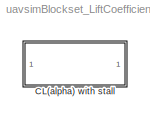
MODEL uavsimBlockset_LiftCoefficientWithStall
KIND library
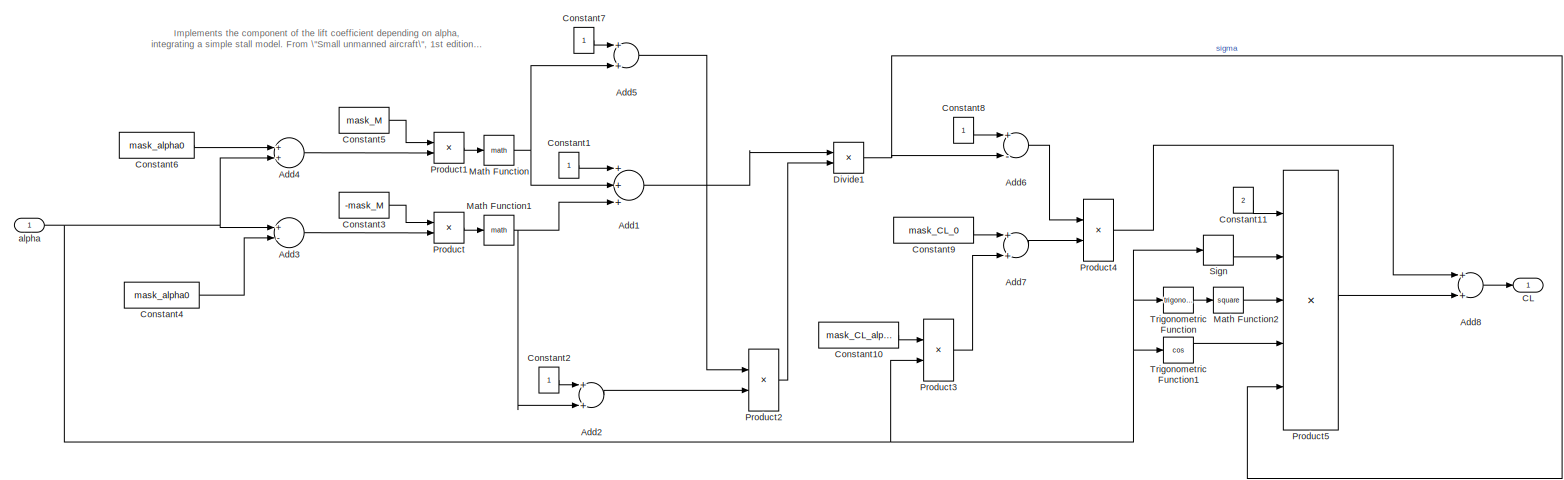
[diagram: CL(alpha) with stall - part 1/1, most of the canvas]
BLOCK [SubSystem] CL(alpha) with stall
  FunctionWithSeparateData = off
  MaskHideContents = off
  MinAlgLoopOccurrences = off
  Opaque = off
  Ports = [1, 1]
  PropExecContextOutsideSubsystem = off
  RTWSystemCode = Auto
  RequestExecContextInheritance = off
  SID = 1977
BLOCK [Sum] CL(alpha) with stall/Add1
  InputSameDT = off
  Inputs = +++
  OutDataTypeStr = Inherit: Inherit via internal rule
  Ports = [3, 1]
  SID = 4442
  SaturateOnIntegerOverflow = off
BLOCK [Sum] CL(alpha) with stall/Add2
  InputSameDT = off
  OutDataTypeStr = Inherit: Inherit via internal rule
  Ports = [2, 1]
  SID = 4445
  SaturateOnIntegerOverflow = off
BLOCK [Sum] CL(alpha) with stall/Add3
  InputSameDT = off
  Inputs = +-
  OutDataTypeStr = Inherit: Inherit via internal rule
  Ports = [2, 1]
  SID = 4434
  SaturateOnIntegerOverflow = off
BLOCK [Sum] CL(alpha) with stall/Add4
  InputSameDT = off
  OutDataTypeStr = Inherit: Inherit via internal rule
  Ports = [2, 1]
  SID = 4438
  SaturateOnIntegerOverflow = off
BLOCK [Sum] CL(alpha) with stall/Add5
  InputSameDT = off
  OutDataTypeStr = Inherit: Inherit via internal rule
  Ports = [2, 1]
  SID = 4450
  SaturateOnIntegerOverflow = off
BLOCK [Sum] CL(alpha) with stall/Add6
  InputSameDT = off
  Inputs = +-
  OutDataTypeStr = Inherit: Inherit via internal rule
  Ports = [2, 1]
  SID = 4453
  SaturateOnIntegerOverflow = off
BLOCK [Sum] CL(alpha) with stall/Add7
  InputSameDT = off
  OutDataTypeStr = Inherit: Inherit via internal rule
  Ports = [2, 1]
  SID = 4456
  SaturateOnIntegerOverflow = off
BLOCK [Sum] CL(alpha) with stall/Add8
  InputSameDT = off
  OutDataTypeStr = Inherit: Inherit via internal rule
  Ports = [2, 1]
  SID = 4468
  SaturateOnIntegerOverflow = off
BLOCK [Outport] CL(alpha) with stall/CL
  IconDisplay = Port number
  SID = 1979
BLOCK [Constant] CL(alpha) with stall/Constant1
  SID = 4443
BLOCK [Constant] CL(alpha) with stall/Constant10
  SID = 4458
  Value = mask_CL_alpha
BLOCK [Constant] CL(alpha) with stall/Constant11
  SID = 4462
  Value = 2
BLOCK [Constant] CL(alpha) with stall/Constant2
  SID = 4446
BLOCK [Constant] CL(alpha) with stall/Constant3
  SID = 4432
  Value = -mask_M
BLOCK [Constant] CL(alpha) with stall/Constant4
  SID = 4435
  Value = mask_alpha0
BLOCK [Constant] CL(alpha) with stall/Constant5
  SID = 4436
  Value = mask_M
BLOCK [Constant] CL(alpha) with stall/Constant6
  SID = 4439
  Value = mask_alpha0
BLOCK [Constant] CL(alpha) with stall/Constant7
  SID = 4451
BLOCK [Constant] CL(alpha) with stall/Constant8
  SID = 4454
BLOCK [Constant] CL(alpha) with stall/Constant9
  SID = 4455
  Value = mask_CL_0
BLOCK [Product] CL(alpha) with stall/Divide1
  InputSameDT = off
  Inputs = */
  OutDataTypeStr = Inherit: Inherit via internal rule
  Ports = [2, 1]
  RndMeth = Floor
  SID = 4452
  SaturateOnIntegerOverflow = off
BLOCK [Math] CL(alpha) with stall/Math Function
  Ports = [1, 1]
  SID = 4440
BLOCK [Math] CL(alpha) with stall/Math Function1
  Ports = [1, 1]
  SID = 4441
BLOCK [Math] CL(alpha) with stall/Math Function2
  Operator = square
  Ports = [1, 1]
  SID = 4465
BLOCK [Product] CL(alpha) with stall/Product
  InputSameDT = off
  OutDataTypeStr = Inherit: Inherit via internal rule
  Ports = [2, 1]
  SID = 4433
  SaturateOnIntegerOverflow = off
BLOCK [Product] CL(alpha) with stall/Product1
  InputSameDT = off
  OutDataTypeStr = Inherit: Inherit via internal rule
  Ports = [2, 1]
  SID = 4437
  SaturateOnIntegerOverflow = off
BLOCK [Product] CL(alpha) with stall/Product2
  InputSameDT = off
  OutDataTypeStr = Inherit: Inherit via internal rule
  Ports = [2, 1]
  SID = 4448
  SaturateOnIntegerOverflow = off
BLOCK [Product] CL(alpha) with stall/Product3
  InputSameDT = off
  OutDataTypeStr = Inherit: Inherit via internal rule
  Ports = [2, 1]
  SID = 4457
  SaturateOnIntegerOverflow = off
BLOCK [Product] CL(alpha) with stall/Product4
  InputSameDT = off
  OutDataTypeStr = Inherit: Inherit via internal rule
  Ports = [2, 1]
  SID = 4459
  SaturateOnIntegerOverflow = off
BLOCK [Product] CL(alpha) with stall/Product5
  InputSameDT = off
  Inputs = 5
  OutDataTypeStr = Inherit: Inherit via internal rule
  Ports = [5, 1]
  SID = 4461
  SaturateOnIntegerOverflow = off
BLOCK [Signum] CL(alpha) with stall/Sign
  SID = 4464
BLOCK [Trigonometry] CL(alpha) with stall/Trigonometric Function
  Ports = [1, 1]
  SID = 4466
BLOCK [Trigonometry] CL(alpha) with stall/Trigonometric Function1
  Operator = cos
  Ports = [1, 1]
  SID = 4467
BLOCK [Inport] CL(alpha) with stall/alpha
  IconDisplay = Port number
  SID = 1978
ANNOTATION CL(alpha) with stall: Implements the component of the lift coefficient depending on alpha, \nintegrating a simple stall model. From \"Small unmanned aircraft\", 1st edition, eq.4.9 to 4.10.
LINE CL(alpha) with stall/Add1:1 -> CL(alpha) with stall/Divide1:1
LINE CL(alpha) with stall/Add2:1 -> CL(alpha) with stall/Product2:2
LINE CL(alpha) with stall/Add3:1 -> CL(alpha) with stall/Product:2
LINE CL(alpha) with stall/Add4:1 -> CL(alpha) with stall/Product1:2
LINE CL(alpha) with stall/Add5:1 -> CL(alpha) with stall/Product2:1
LINE CL(alpha) with stall/Add6:1 -> CL(alpha) with stall/Product4:1
LINE CL(alpha) with stall/Add7:1 -> CL(alpha) with stall/Product4:2
LINE CL(alpha) with stall/Add8:1 -> CL(alpha) with stall/CL:1
LINE CL(alpha) with stall/Constant10:1 -> CL(alpha) with stall/Product3:1
LINE CL(alpha) with stall/Constant11:1 -> CL(alpha) with stall/Product5:1
LINE CL(alpha) with stall/Constant1:1 -> CL(alpha) with stall/Add1:1
LINE CL(alpha) with stall/Constant2:1 -> CL(alpha) with stall/Add2:1
LINE CL(alpha) with stall/Constant3:1 -> CL(alpha) with stall/Product:1
LINE CL(alpha) with stall/Constant4:1 -> CL(alpha) with stall/Add3:2
LINE CL(alpha) with stall/Constant5:1 -> CL(alpha) with stall/Product1:1
LINE CL(alpha) with stall/Constant6:1 -> CL(alpha) with stall/Add4:1
LINE CL(alpha) with stall/Constant7:1 -> CL(alpha) with stall/Add5:1
LINE CL(alpha) with stall/Constant8:1 -> CL(alpha) with stall/Add6:1
LINE CL(alpha) with stall/Constant9:1 -> CL(alpha) with stall/Add7:1
NET CL(alpha) with stall/Divide1:1 -> CL(alpha) with stall/Add6:2, CL(alpha) with stall/Product5:5
NET CL(alpha) with stall/Math Function1:1 -> CL(alpha) with stall/Add1:3, CL(alpha) with stall/Add2:2
LINE CL(alpha) with stall/Math Function2:1 -> CL(alpha) with stall/Product5:3
NET CL(alpha) with stall/Math Function:1 -> CL(alpha) with stall/Add1:2, CL(alpha) with stall/Add5:2
LINE CL(alpha) with stall/Product1:1 -> CL(alpha) with stall/Math Function:1
LINE CL(alpha) with stall/Product2:1 -> CL(alpha) with stall/Divide1:2
LINE CL(alpha) with stall/Product3:1 -> CL(alpha) with stall/Add7:2
LINE CL(alpha) with stall/Product4:1 -> CL(alpha) with stall/Add8:1
LINE CL(alpha) with stall/Product5:1 -> CL(alpha) with stall/Add8:2
LINE CL(alpha) with stall/Product:1 -> CL(alpha) with stall/Math Function1:1
LINE CL(alpha) with stall/Sign:1 -> CL(alpha) with stall/Product5:2
LINE CL(alpha) with stall/Trigonometric Function1:1 -> CL(alpha) with stall/Product5:4
LINE CL(alpha) with stall/Trigonometric Function:1 -> CL(alpha) with stall/Math Function2:1
NET CL(alpha) with stall/alpha:1 -> CL(alpha) with stall/Add3:1, CL(alpha) with stall/Add4:2, CL(alpha) with stall/Product3:2, CL(alpha) with stall/Sign:1, CL(alpha) with stall/Trigonometric Function1:1, CL(alpha) with stall/Trigonometric Function:1
note: NET lines group one-source signal fan-out (src -> all destinations, sorted); 1:1 wires keep LINE
